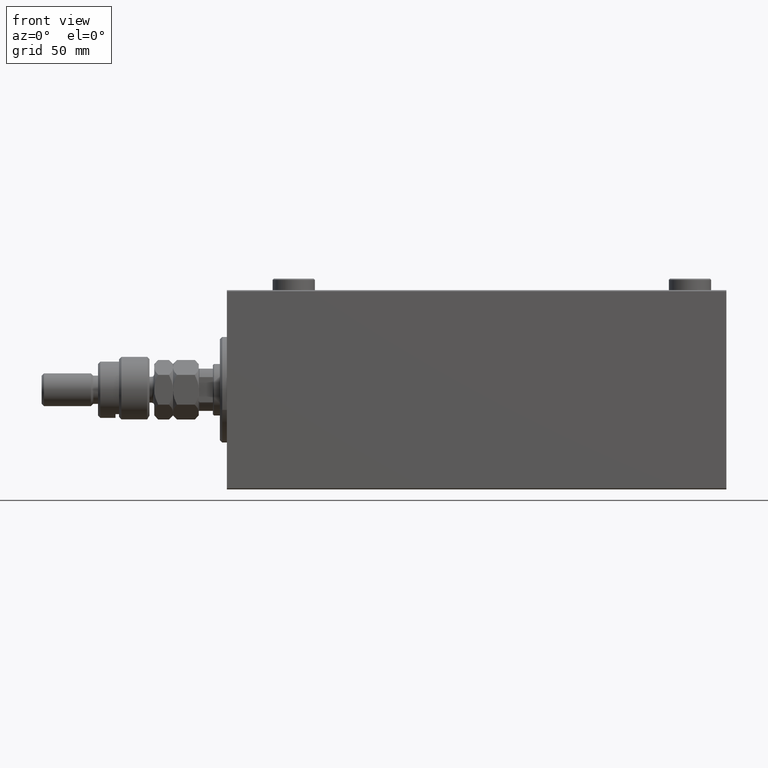
[diagram: clean part render]
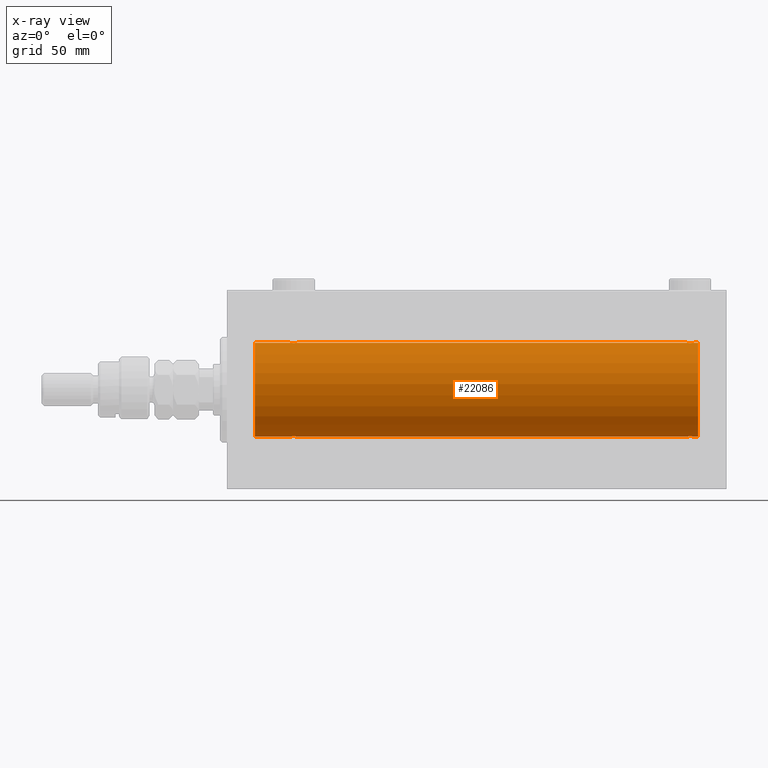
[diagram: x-ray — body ghosted, one internal face saturated and labeled with its STEP entity id]
A machine part, front view, then the same camera in x-ray: the body is ghosted and one INTERNAL B-rep face — a face not visible from any outside direction — is saturated and labeled: STEP entity #22086.
In plain terms, the highlighted cylindrical surface (partial cylindrical patch) has radius 20 mm, axis along (-1, -0, -0).
Its self-contained STEP definition (entity closure, byte-faithful):
#285 = CARTESIAN_POINT ( 'NONE',  ( 201.0000000000000000, 0.000000000000000000, 0.000000000000000000 ) ) ;
#384 = CARTESIAN_POINT ( 'NONE',  ( 196.1769333108053388, -1.505486175075782196, 19.94347168299868045 ) ) ;
#428 = DIRECTION ( 'NONE',  ( -1.000000000000000000, 0.000000000000000000, 0.000000000000000000 ) ) ;
#634 = CARTESIAN_POINT ( 'NONE',  ( 198.8209690684728912, -1.507328959728495121, 19.94333197382385592 ) ) ;
#637 = CARTESIAN_POINT ( 'NONE',  ( 198.3882943720709306, -1.796691196322336870, -19.91919800395357143 ) ) ;
#830 = CARTESIAN_POINT ( 'NONE',  ( 195.5000000000000000, -2.194759453252805910E-14, -20.00000000000000000 ) ) ;
#954 = VERTEX_POINT ( 'NONE', #830 ) ;
#965 = VERTEX_POINT ( 'NONE', #23177 ) ;
#1550 = CIRCLE ( 'NONE', #17035, 20.00000000000000000 ) ;
#1615 = CARTESIAN_POINT ( 'NONE',  ( 29.82306668919470027, -1.505486175075773314, -19.94347168299866979 ) ) ;
#1733 = VECTOR ( 'NONE', #39348, 1000.000000000000000 ) ;
#3344 = CARTESIAN_POINT ( 'NONE',  ( 27.27971054205535495, -1.589957321664213552, 19.93683391378736047 ) ) ;
#3559 = CARTESIAN_POINT ( 'NONE',  ( 198.0192351213527786, -1.935816449315146626, -19.90611141657401362 ) ) ;
#3585 = CARTESIAN_POINT ( 'NONE',  ( 26.50000000000000355, -1.552596590610734385E-23, 20.00000000000000000 ) ) ;
#3692 = EDGE_CURVE ( 'NONE', #15820, #11109, #41316, .T. ) ;
#3797 = CARTESIAN_POINT ( 'NONE',  ( 195.5000000000000284, -0.2610801504281917151, 20.00000000000000000 ) ) ;
#4039 = CARTESIAN_POINT ( 'NONE',  ( 195.9022530844526955, -1.230936344679302907, -19.96293863536308422 ) ) ;
#4271 = CARTESIAN_POINT ( 'NONE',  ( 199.2482591346002039, -1.005710574260850532, -19.97614991974274190 ) ) ;
#4517 = CARTESIAN_POINT ( 'NONE',  ( 199.4467948419180345, -0.5270924491156583347, 19.99450181871976184 ) ) ;
#4522 = CARTESIAN_POINT ( 'NONE',  ( 198.8230666891946328, -1.505486175075778199, -19.94347168299867690 ) ) ;
#4750 = CARTESIAN_POINT ( 'NONE',  ( 199.2468697630307304, -1.008108445278674825, 19.97602680192586888 ) ) ;
#4769 = CARTESIAN_POINT ( 'NONE',  ( 26.50000000000000355, -6.257798774011376898E-15, -20.00000000000000000 ) ) ;
#5121 = VECTOR ( 'NONE', #33003, 1000.000000000000000 ) ;
#5499 = CARTESIAN_POINT ( 'NONE',  ( 28.63365196142447644, -1.999898234284065657, -19.89975896996865856 ) ) ;
#6277 = CARTESIAN_POINT ( 'NONE',  ( 28.76077256031568652, -1.987205673487814739, 19.90104673894211018 ) ) ;
#6513 = CARTESIAN_POINT ( 'NONE',  ( 30.50000000000000000, -9.453669475664189070E-16, 20.00000000000000000 ) ) ;
#6756 = CARTESIAN_POINT ( 'NONE',  ( 29.14348528733042443, -1.898187925611342974, 19.90978194174746818 ) ) ;
#7232 = CARTESIAN_POINT ( 'NONE',  ( 29.50067219139245367, -1.736582545981377734, 19.92459705242981371 ) ) ;
#7308 = CARTESIAN_POINT ( 'NONE',  ( 201.0000000000000000, 0.000000000000000000, 0.000000000000000000 ) ) ;
#7396 = ORIENTED_EDGE ( 'NONE', *, *, #37507, .T. ) ;
#7443 = CARTESIAN_POINT ( 'NONE',  ( 195.5000000000000000, -1.553188236289650144E-23, 20.00000000000000000 ) ) ;
#7636 = ORIENTED_EDGE ( 'NONE', *, *, #16953, .T. ) ;
#7682 = CARTESIAN_POINT ( 'NONE',  ( 196.4969344366039650, -1.735203193119901455, 19.92471783160911158 ) ) ;
#7686 = CARTESIAN_POINT ( 'NONE',  ( 199.0994152488403586, -1.228758402364237279, -19.96307487248085266 ) ) ;
#7787 = DIRECTION ( 'NONE',  ( -1.000000000000000000, 0.000000000000000000, 0.000000000000000000 ) ) ;
#7926 = CARTESIAN_POINT ( 'NONE',  ( 195.5000000000000284, -0.2644051013331287225, -20.00000000000000000 ) ) ;
#8199 = DIRECTION ( 'NONE',  ( 0.000000000000000000, 0.000000000000000000, 1.000000000000000000 ) ) ;
#8656 = CARTESIAN_POINT ( 'NONE',  ( 29.38829437207092354, -1.796691196322319994, -19.91919800395357498 ) ) ;
#8842 = ORIENTED_EDGE ( 'NONE', *, *, #3692, .F. ) ;
#8986 = B_SPLINE_CURVE_WITH_KNOTS ( 'NONE', 3,
 ( #12031, #40475, #29766, #4271, #7686, #4522, #19070, #22500, #637, #18361, #3559, #11319, #41189, #22017, #22731, #11086, #33908, #40706, #18607, #33661, #33428, #4039, #15194, #44838, #7926, #15434 ),
 .UNSPECIFIED., .F., .F.,
 ( 4, 2, 2, 2, 2, 2, 2, 2, 2, 2, 2, 2, 4 ),
 ( 0.006256819553329811927, 0.007038738568778726487, 0.007820657584227641915, 0.008211617091952127384, 0.008602576599676614588, 0.008993536107401101792, 0.009384495615125588996, 0.009775455122850074466, 0.01016641463057456167, 0.01055737413829904714, 0.01094833364602353434, 0.01173025266147256600, 0.01251217167692159765 ),
 .UNSPECIFIED. ) ;
#10160 = CARTESIAN_POINT ( 'NONE',  ( 27.61170562792909777, -1.796691196322324213, 19.91919800395357498 ) ) ;
#10333 = VECTOR ( 'NONE', #24317, 1000.000000000000000 ) ;
#10395 = CARTESIAN_POINT ( 'NONE',  ( 30.44679484191798124, -0.5270924491156695479, 19.99450181871975829 ) ) ;
#10567 = EDGE_CURVE ( 'NONE', #31599, #41927, #32309, .T. ) ;
#11086 = CARTESIAN_POINT ( 'NONE',  ( 196.9835146708109619, -1.936551476643029401, -19.90603968831098314 ) ) ;
#11109 = VERTEX_POINT ( 'NONE', #46952 ) ;
#11177 = DIRECTION ( 'NONE',  ( 0.000000000000000000, 0.000000000000000000, 1.000000000000000000 ) ) ;
#11319 = CARTESIAN_POINT ( 'NONE',  ( 197.7635814409141233, -1.986835489085835738, -19.90108393514801577 ) ) ;
#11387 = CARTESIAN_POINT ( 'NONE',  ( 12.00000000000001066, 0.000000000000000000, 20.00000000000000000 ) ) ;
#11427 = AXIS2_PLACEMENT_3D ( 'NONE', #7308, #7787, #11177 ) ;
#11457 = DIRECTION ( 'NONE',  ( -1.000000000000000000, -0.000000000000000000, -0.000000000000000000 ) ) ;
#11790 = CARTESIAN_POINT ( 'NONE',  ( 198.7180541947215033, -1.591668229360202025, 19.93669678979812332 ) ) ;
#12031 = CARTESIAN_POINT ( 'NONE',  ( 199.5000000000000000, 2.449293582762473501E-15, -20.00000000000000000 ) ) ;
#12484 = VERTEX_POINT ( 'NONE', #32312 ) ;
#12528 = CARTESIAN_POINT ( 'NONE',  ( 30.44755062882508412, -0.5243189001515006220, -19.99457699142850231 ) ) ;
#12664 = CARTESIAN_POINT ( 'NONE',  ( 30.50000000000000000, 2.449293582768389958E-15, -20.00000000000000000 ) ) ;
#12763 = CARTESIAN_POINT ( 'NONE',  ( 27.61420923329272981, -1.797933656607920039, -19.91908554465558367 ) ) ;
#12941 = B_SPLINE_CURVE_WITH_KNOTS ( 'NONE', 3,
 ( #31466, #45323, #12528, #34885, #23959, #1615, #30501, #23232, #8656, #35122, #23700, #34156, #5499, #22985, #41431, #31227, #19335, #12763, #27331, #19809, #38028, #27575, #34389, #34634, #26849, #4769 ),
 .UNSPECIFIED., .F., .F.,
 ( 4, 2, 2, 2, 2, 2, 2, 2, 2, 2, 2, 2, 4 ),
 ( 0.006256819553329837948, 0.007038738568778813223, 0.007820657584227789366, 0.008211617091952273101, 0.008602576599676756836, 0.008993536107401240570, 0.009384495615125724305, 0.009775455122850208040, 0.01016641463057469177, 0.01055737413829917551, 0.01094833364602365924, 0.01173025266147262498, 0.01251217167692159245 ),
 .UNSPECIFIED. ) ;
#12964 = ORIENTED_EDGE ( 'NONE', *, *, #30274, .T. ) ;
#13215 = ORIENTED_EDGE ( 'NONE', *, *, #10567, .F. ) ;
#13357 = CARTESIAN_POINT ( 'NONE',  ( 201.0000000000000000, 0.000000000000000000, 20.00000000000000000 ) ) ;
#13723 = EDGE_CURVE ( 'NONE', #41063, #965, #43492, .T. ) ;
#13801 = CARTESIAN_POINT ( 'NONE',  ( 28.23641855908585541, -1.986835489085820194, 19.90108393514801222 ) ) ;
#14268 = CARTESIAN_POINT ( 'NONE',  ( 27.49693443660398273, -1.735203193119900344, 19.92471783160911158 ) ) ;
#14634 = CARTESIAN_POINT ( 'NONE',  ( 195.5000000000000000, -1.553188236289650144E-23, 20.00000000000000000 ) ) ;
#14721 = CARTESIAN_POINT ( 'NONE',  ( 199.5000000000000568, -0.2644051013331001343, 20.00000000000000711 ) ) ;
#14776 = CARTESIAN_POINT ( 'NONE',  ( 201.0000000000000000, 2.449293598294706513E-15, -20.00000000000000000 ) ) ;
#15183 = LINE ( 'NONE', #30005, #22068 ) ;
#15194 = CARTESIAN_POINT ( 'NONE',  ( 195.7531302369692980, -1.008108445278719900, -19.97602680192585822 ) ) ;
#15380 = ORIENTED_EDGE ( 'NONE', *, *, #13723, .T. ) ;
#15426 = CARTESIAN_POINT ( 'NONE',  ( 26.50000000000000355, -6.257798774011376898E-15, -20.00000000000000000 ) ) ;
#15429 = ORIENTED_EDGE ( 'NONE', *, *, #32478, .T. ) ;
#15434 = CARTESIAN_POINT ( 'NONE',  ( 195.5000000000000000, -2.194759453252805910E-14, -20.00000000000000000 ) ) ;
#15686 = ORIENTED_EDGE ( 'NONE', *, *, #20408, .T. ) ;
#15820 = VERTEX_POINT ( 'NONE', #35573 ) ;
#16953 = EDGE_CURVE ( 'NONE', #31599, #11109, #26922, .T. ) ;
#17035 = AXIS2_PLACEMENT_3D ( 'NONE', #45349, #428, #8199 ) ;
#18361 = CARTESIAN_POINT ( 'NONE',  ( 198.1463067392464552, -1.897222639860616233, -19.90987429971496070 ) ) ;
#18385 = CARTESIAN_POINT ( 'NONE',  ( 29.71805419472152110, -1.591668229360197806, 19.93669678979812687 ) ) ;
#18607 = CARTESIAN_POINT ( 'NONE',  ( 196.4993278086076316, -1.736582545981399939, -19.92459705242980306 ) ) ;
#18736 = DIRECTION ( 'NONE',  ( -1.000000000000000000, -0.000000000000000000, -0.000000000000000000 ) ) ;
#19070 = CARTESIAN_POINT ( 'NONE',  ( 198.7202894579447161, -1.589957321664215328, -19.93683391378736403 ) ) ;
#19313 = CARTESIAN_POINT ( 'NONE',  ( 199.5000000000000000, 6.438096668033870730E-15, 20.00000000000000000 ) ) ;
#19335 = CARTESIAN_POINT ( 'NONE',  ( 27.85651471266958978, -1.898187925611340976, -19.90978194174746818 ) ) ;
#19728 = EDGE_CURVE ( 'NONE', #40088, #21517, #15183, .T. ) ;
#19809 = CARTESIAN_POINT ( 'NONE',  ( 27.28194580527850022, -1.591668229360200026, -19.93669678979812687 ) ) ;
#19863 = VERTEX_POINT ( 'NONE', #15426 ) ;
#20408 = EDGE_CURVE ( 'NONE', #19863, #12484, #48059, .T. ) ;
#21327 = CARTESIAN_POINT ( 'NONE',  ( 27.98076487864723561, -1.935816449315131749, 19.90611141657401362 ) ) ;
#21517 = VERTEX_POINT ( 'NONE', #11387 ) ;
#21809 = CARTESIAN_POINT ( 'NONE',  ( 28.36634803857551290, -1.999898234284068321, 19.89975896996865856 ) ) ;
#22017 = CARTESIAN_POINT ( 'NONE',  ( 197.3694112828916616, -2.000100592782575237, -19.89973863218036243 ) ) ;
#22068 = VECTOR ( 'NONE', #25876, 1000.000000000000000 ) ;
#22086 = ADVANCED_FACE ( 'NONE', ( #33557 ), #23107, .F. ) ;
#22233 = ORIENTED_EDGE ( 'NONE', *, *, #19728, .F. ) ;
#22252 = CARTESIAN_POINT ( 'NONE',  ( 196.6117056279290694, -1.796691196322318218, 19.91919800395357143 ) ) ;
#22493 = CARTESIAN_POINT ( 'NONE',  ( 197.6305887171083668, -2.000100592782557474, 19.89973863218036243 ) ) ;
#22500 = CARTESIAN_POINT ( 'NONE',  ( 198.5030655633960350, -1.735203193119904341, -19.92471783160911158 ) ) ;
#22728 = CARTESIAN_POINT ( 'NONE',  ( 197.3663480385755236, -1.999898234284065657, 19.89975896996866211 ) ) ;
#22731 = CARTESIAN_POINT ( 'NONE',  ( 197.2392274396843277, -1.987205673487832502, -19.90104673894210308 ) ) ;
#22788 = DIRECTION ( 'NONE',  ( -1.000000000000000000, -0.000000000000000000, -0.000000000000000000 ) ) ;
#22826 = CARTESIAN_POINT ( 'NONE',  ( 30.50000000000000000, -9.453669475664189070E-16, 20.00000000000000000 ) ) ;
#22961 = CARTESIAN_POINT ( 'NONE',  ( 199.0977469155473898, -1.230936344679282257, 19.96293863536309843 ) ) ;
#22985 = CARTESIAN_POINT ( 'NONE',  ( 28.36941128289166514, -2.000100592782555697, -19.89973863218036598 ) ) ;
#23107 = CYLINDRICAL_SURFACE ( 'NONE', #47726, 20.00000000000000000 ) ;
#23177 = CARTESIAN_POINT ( 'NONE',  ( 199.5000000000000000, 2.449293582762473501E-15, -20.00000000000000000 ) ) ;
#23232 = CARTESIAN_POINT ( 'NONE',  ( 29.50306556339602082, -1.735203193119896348, -19.92471783160911158 ) ) ;
#23700 = CARTESIAN_POINT ( 'NONE',  ( 29.01923512135277150, -1.935816449315127308, -19.90611141657401362 ) ) ;
#23959 = CARTESIAN_POINT ( 'NONE',  ( 30.09941524884030528, -1.228758402364235724, -19.96307487248084911 ) ) ;
#24317 = DIRECTION ( 'NONE',  ( -1.000000000000000000, -0.000000000000000000, -0.000000000000000000 ) ) ;
#24584 = B_SPLINE_CURVE_WITH_KNOTS ( 'NONE', 3,
 ( #3585, #47322, #47786, #24961, #25196, #28608, #3344, #14268, #10160, #32973, #21327, #13801, #21809, #29330, #6277, #43426, #6756, #40497, #7232, #18385, #39774, #40017, #47074, #10395, #25447, #6513 ),
 .UNSPECIFIED., .F., .F.,
 ( 4, 2, 2, 2, 2, 2, 2, 2, 2, 2, 2, 2, 4 ),
 ( 0.006256819553329818866, 0.007038738568778795009, 0.007820657584227770284, 0.008211617091952255754, 0.008602576599676739488, 0.008993536107401223223, 0.009384495615125706958, 0.009775455122850190692, 0.01016641463057467443, 0.01055737413829915816, 0.01094833364602364190, 0.01173025266147261110, 0.01251217167692157857 ),
 .UNSPECIFIED. ) ;
#24784 = EDGE_CURVE ( 'NONE', #965, #954, #8986, .T. ) ;
#24961 = CARTESIAN_POINT ( 'NONE',  ( 26.75174086539980678, -1.005710574260844092, 19.97614991974273835 ) ) ;
#25196 = CARTESIAN_POINT ( 'NONE',  ( 26.90058475115969827, -1.228758402364238833, 19.96307487248084911 ) ) ;
#25447 = CARTESIAN_POINT ( 'NONE',  ( 30.50000000000000000, -0.2644051013330992461, 19.99999999999999645 ) ) ;
#25876 = DIRECTION ( 'NONE',  ( -1.000000000000000000, -0.000000000000000000, -0.000000000000000000 ) ) ;
#26149 = CIRCLE ( 'NONE', #11427, 20.00000000000000000 ) ;
#26362 = CARTESIAN_POINT ( 'NONE',  ( 195.7517408653998245, -1.005710574260844758, 19.97614991974274190 ) ) ;
#26493 = CARTESIAN_POINT ( 'NONE',  ( 201.0000000000000000, 0.000000000000000000, 20.00000000000000000 ) ) ;
#26631 = CARTESIAN_POINT ( 'NONE',  ( 201.0000000000000000, 2.449293598294706513E-15, -20.00000000000000000 ) ) ;
#26827 = CARTESIAN_POINT ( 'NONE',  ( 196.9807648786472782, -1.935816449315135523, 19.90611141657401006 ) ) ;
#26849 = CARTESIAN_POINT ( 'NONE',  ( 26.50000000000000711, -0.2644051013331055744, -19.99999999999999645 ) ) ;
#26922 = B_SPLINE_CURVE_WITH_KNOTS ( 'NONE', 3,
 ( #7443, #3797, #44833, #26362, #41411, #384, #40944, #7682, #22252, #44580, #26827, #33656, #22728, #22493, #29533, #37298, #37530, #37063, #30477, #11790, #634, #22961, #4750, #4517, #14721, #19313 ),
 .UNSPECIFIED., .F., .F.,
 ( 4, 2, 2, 2, 2, 2, 2, 2, 2, 2, 2, 2, 4 ),
 ( 0.006256819553329832743, 0.007038738568778792407, 0.007820657584227751202, 0.008211617091952231468, 0.008602576599676711733, 0.008993536107401190263, 0.009384495615125668794, 0.009775455122850149059, 0.01016641463057462759, 0.01055737413829910612, 0.01094833364602358639, 0.01173025266147260243, 0.01251217167692161847 ),
 .UNSPECIFIED. ) ;
#27247 = EDGE_CURVE ( 'NONE', #41063, #15820, #26149, .T. ) ;
#27331 = CARTESIAN_POINT ( 'NONE',  ( 27.49932780860757475, -1.736582545981378845, -19.92459705242981371 ) ) ;
#27575 = CARTESIAN_POINT ( 'NONE',  ( 26.90225308445270613, -1.230936344679281369, -19.96293863536309487 ) ) ;
#27629 = ORIENTED_EDGE ( 'NONE', *, *, #24784, .T. ) ;
#27858 = VECTOR ( 'NONE', #22788, 1000.000000000000000 ) ;
#28608 = CARTESIAN_POINT ( 'NONE',  ( 27.17693331080529973, -1.505486175075776645, 19.94347168299866979 ) ) ;
#28851 = CARTESIAN_POINT ( 'NONE',  ( 26.50000000000000355, -1.552596590610734385E-23, 20.00000000000000000 ) ) ;
#29330 = CARTESIAN_POINT ( 'NONE',  ( 28.63058871710834552, -2.000100592782559250, 19.89973863218036598 ) ) ;
#29533 = CARTESIAN_POINT ( 'NONE',  ( 197.7607725603157007, -1.987205673487809854, 19.90104673894210308 ) ) ;
#29766 = CARTESIAN_POINT ( 'NONE',  ( 199.4475506288250699, -0.5243189001515076164, -19.99457699142850586 ) ) ;
#30005 = CARTESIAN_POINT ( 'NONE',  ( 201.0000000000000000, 0.000000000000000000, 20.00000000000000000 ) ) ;
#30274 = EDGE_CURVE ( 'NONE', #46555, #19863, #12941, .T. ) ;
#30314 = CARTESIAN_POINT ( 'NONE',  ( 201.0000000000000000, 2.449293598294706513E-15, -20.00000000000000000 ) ) ;
#30477 = CARTESIAN_POINT ( 'NONE',  ( 198.5006721913924252, -1.736582545981380177, 19.92459705242980661 ) ) ;
#30501 = CARTESIAN_POINT ( 'NONE',  ( 29.72028945794465216, -1.589957321664210665, -19.93683391378736047 ) ) ;
#31227 = CARTESIAN_POINT ( 'NONE',  ( 27.98351467081095123, -1.936551476643008529, -19.90603968831098314 ) ) ;
#31466 = CARTESIAN_POINT ( 'NONE',  ( 30.50000000000000000, 2.449293582768389958E-15, -20.00000000000000000 ) ) ;
#31599 = VERTEX_POINT ( 'NONE', #14634 ) ;
#32309 = LINE ( 'NONE', #13357, #1733 ) ;
#32312 = CARTESIAN_POINT ( 'NONE',  ( 12.00000000000001066, 2.449293598294706513E-15, -20.00000000000000000 ) ) ;
#32478 = EDGE_CURVE ( 'NONE', #954, #46555, #37844, .T. ) ;
#32973 = CARTESIAN_POINT ( 'NONE',  ( 27.85369326075355190, -1.897222639860601578, 19.90987429971495715 ) ) ;
#33003 = DIRECTION ( 'NONE',  ( -1.000000000000000000, -0.000000000000000000, -0.000000000000000000 ) ) ;
#33428 = CARTESIAN_POINT ( 'NONE',  ( 196.1790309315270804, -1.507328959728516438, -19.94333197382385592 ) ) ;
#33557 = FACE_OUTER_BOUND ( 'NONE', #38825, .T. ) ;
#33656 = CARTESIAN_POINT ( 'NONE',  ( 197.2364185590859051, -1.986835489085821527, 19.90108393514801932 ) ) ;
#33661 = CARTESIAN_POINT ( 'NONE',  ( 196.2819458052784967, -1.591668229360221565, -19.93669678979811977 ) ) ;
#33908 = CARTESIAN_POINT ( 'NONE',  ( 196.8565147126696218, -1.898187925611367399, -19.90978194174746463 ) ) ;
#34156 = CARTESIAN_POINT ( 'NONE',  ( 28.76358144091414815, -1.986835489085816198, -19.90108393514801222 ) ) ;
#34389 = CARTESIAN_POINT ( 'NONE',  ( 26.75313023696928738, -1.008108445278691478, -19.97602680192586533 ) ) ;
#34634 = CARTESIAN_POINT ( 'NONE',  ( 26.55320515808203297, -0.5270924491156746550, -19.99450181871975829 ) ) ;
#34885 = CARTESIAN_POINT ( 'NONE',  ( 30.24825913460018256, -1.005710574260840096, -19.97614991974273835 ) ) ;
#35122 = CARTESIAN_POINT ( 'NONE',  ( 29.14630673924644100, -1.897222639860597360, -19.90987429971497136 ) ) ;
#35432 = VECTOR ( 'NONE', #18736, 1000.000000000000000 ) ;
#35572 = ORIENTED_EDGE ( 'NONE', *, *, #27247, .F. ) ;
#35573 = CARTESIAN_POINT ( 'NONE',  ( 201.0000000000000000, 0.000000000000000000, 20.00000000000000000 ) ) ;
#36212 = CARTESIAN_POINT ( 'NONE',  ( 201.0000000000000000, 2.449293598294706513E-15, -20.00000000000000000 ) ) ;
#37009 = EDGE_CURVE ( 'NONE', #12484, #21517, #1550, .T. ) ;
#37063 = CARTESIAN_POINT ( 'NONE',  ( 198.3857907667073448, -1.797933656607917152, 19.91908554465558367 ) ) ;
#37298 = CARTESIAN_POINT ( 'NONE',  ( 198.0164853291890950, -1.936551476643003200, 19.90603968831099024 ) ) ;
#37507 = EDGE_CURVE ( 'NONE', #40088, #41927, #24584, .T. ) ;
#37530 = CARTESIAN_POINT ( 'NONE',  ( 198.1434852873304351, -1.898187925611338978, 19.90978194174746818 ) ) ;
#37844 = LINE ( 'NONE', #30314, #27858 ) ;
#37905 = DIRECTION ( 'NONE',  ( 0.000000000000000000, 0.000000000000000000, 1.000000000000000000 ) ) ;
#38028 = CARTESIAN_POINT ( 'NONE',  ( 27.17903093152711591, -1.507328959728495787, -19.94333197382386302 ) ) ;
#38825 = EDGE_LOOP ( 'NONE', ( #35572, #15380, #27629, #15429, #12964, #15686, #42171, #22233, #7396, #13215, #7636, #8842 ) ) ;
#39348 = DIRECTION ( 'NONE',  ( -1.000000000000000000, -0.000000000000000000, -0.000000000000000000 ) ) ;
#39774 = CARTESIAN_POINT ( 'NONE',  ( 29.82096906847290896, -1.507328959728495121, 19.94333197382386302 ) ) ;
#40017 = CARTESIAN_POINT ( 'NONE',  ( 30.09774691554730808, -1.230936344679279593, 19.96293863536309487 ) ) ;
#40088 = VERTEX_POINT ( 'NONE', #28851 ) ;
#40475 = CARTESIAN_POINT ( 'NONE',  ( 199.4999999999999716, -0.2610801504281894947, -19.99999999999999645 ) ) ;
#40497 = CARTESIAN_POINT ( 'NONE',  ( 29.38579076670728440, -1.797933656607920261, 19.91908554465558367 ) ) ;
#40706 = CARTESIAN_POINT ( 'NONE',  ( 196.6142092332926836, -1.797933656607944908, -19.91908554465557302 ) ) ;
#40944 = CARTESIAN_POINT ( 'NONE',  ( 196.2797105420553976, -1.589957321664216661, 19.93683391378736403 ) ) ;
#41063 = VERTEX_POINT ( 'NONE', #26631 ) ;
#41189 = CARTESIAN_POINT ( 'NONE',  ( 197.6336519614244764, -1.999898234284084308, -19.89975896996866211 ) ) ;
#41316 = LINE ( 'NONE', #26493, #35432 ) ;
#41411 = CARTESIAN_POINT ( 'NONE',  ( 195.9005847511597267, -1.228758402364247049, 19.96307487248084911 ) ) ;
#41431 = CARTESIAN_POINT ( 'NONE',  ( 28.23922743968432414, -1.987205673487811630, -19.90104673894211018 ) ) ;
#41927 = VERTEX_POINT ( 'NONE', #22826 ) ;
#42171 = ORIENTED_EDGE ( 'NONE', *, *, #37009, .T. ) ;
#43426 = CARTESIAN_POINT ( 'NONE',  ( 29.01648532918905232, -1.936551476643010528, 19.90603968831098314 ) ) ;
#43492 = LINE ( 'NONE', #36212, #10333 ) ;
#44580 = CARTESIAN_POINT ( 'NONE',  ( 196.8536932607535732, -1.897222639860597360, 19.90987429971496780 ) ) ;
#44833 = CARTESIAN_POINT ( 'NONE',  ( 195.5524493711749585, -0.5243189001515030645, 19.99457699142850231 ) ) ;
#44838 = CARTESIAN_POINT ( 'NONE',  ( 195.5532051580820792, -0.5270924491157048530, -19.99450181871975474 ) ) ;
#45323 = CARTESIAN_POINT ( 'NONE',  ( 30.50000000000000000, -0.2610801504281901053, -20.00000000000000000 ) ) ;
#45349 = CARTESIAN_POINT ( 'NONE',  ( 12.00000000000001066, 0.000000000000000000, 0.000000000000000000 ) ) ;
#46555 = VERTEX_POINT ( 'NONE', #12664 ) ;
#46952 = CARTESIAN_POINT ( 'NONE',  ( 199.5000000000000000, 6.438096668033870730E-15, 20.00000000000000000 ) ) ;
#47074 = CARTESIAN_POINT ( 'NONE',  ( 30.24686976303072328, -1.008108445278688148, 19.97602680192586533 ) ) ;
#47322 = CARTESIAN_POINT ( 'NONE',  ( 26.50000000000001421, -0.2610801504281932695, 20.00000000000000000 ) ) ;
#47726 = AXIS2_PLACEMENT_3D ( 'NONE', #285, #11457, #37905 ) ;
#47786 = CARTESIAN_POINT ( 'NONE',  ( 26.55244937117491943, -0.5243189001515041747, 19.99457699142850231 ) ) ;
#48059 = LINE ( 'NONE', #14776, #5121 ) ;